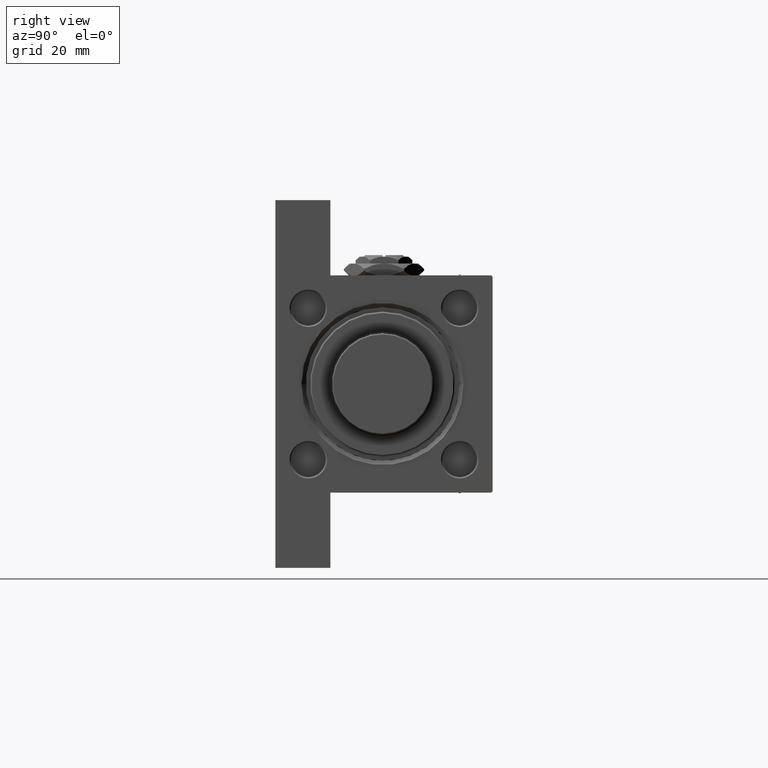
[diagram: clean part render]
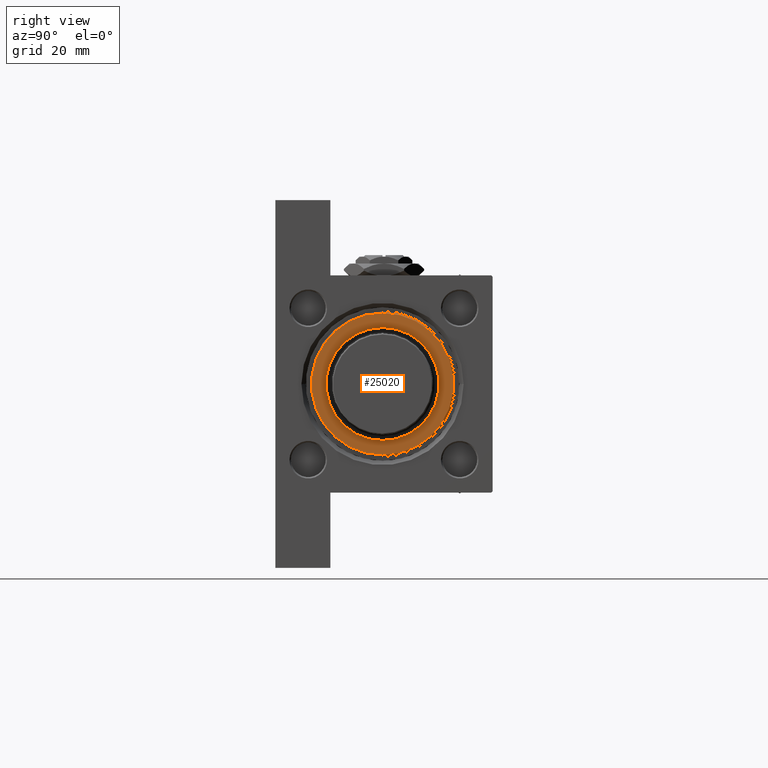
[diagram: same view with one face highlighted and labeled with its STEP entity id]
A machine part, right view. The second image highlights one B-rep face of the part: STEP entity #25020.
In plain terms, the highlighted planar face has unit normal (1, 0, 0).
Its self-contained STEP definition (entity closure, byte-faithful):
#227 = DIRECTION ( 'NONE',  ( 0.000000000000000000, 0.000000000000000000, 1.000000000000000000 ) ) ;
#558 = CARTESIAN_POINT ( 'NONE',  ( 0.000000000000000000, 0.000000000000000000, 37.69999999999999574 ) ) ;
#1672 = EDGE_CURVE ( 'NONE', #11558, #21341, #44841, .T. ) ;
#2458 = DIRECTION ( 'NONE',  ( 0.000000000000000000, 0.000000000000000000, 1.000000000000000000 ) ) ;
#3483 = PLANE ( 'NONE',  #22989 ) ;
#4192 = AXIS2_PLACEMENT_3D ( 'NONE', #558, #22770, #38752 ) ;
#7225 = FACE_BOUND ( 'NONE', #14312, .T. ) ;
#7231 = DIRECTION ( 'NONE',  ( 1.000000000000000000, 0.000000000000000000, 0.000000000000000000 ) ) ;
#9530 = DIRECTION ( 'NONE',  ( 1.000000000000000000, 0.000000000000000000, -0.000000000000000000 ) ) ;
#9962 = CARTESIAN_POINT ( 'NONE',  ( -19.50000000000000000, 2.388061258337338939E-15, 37.69999999999999574 ) ) ;
#11558 = VERTEX_POINT ( 'NONE', #32072 ) ;
#11889 = DIRECTION ( 'NONE',  ( 0.000000000000000000, 0.000000000000000000, 1.000000000000000000 ) ) ;
#12260 = EDGE_LOOP ( 'NONE', ( #39982, #17844 ) ) ;
#14298 = CIRCLE ( 'NONE', #42218, 19.50000000000000000 ) ;
#14312 = EDGE_LOOP ( 'NONE', ( #17511, #39499 ) ) ;
#17511 = ORIENTED_EDGE ( 'NONE', *, *, #24079, .F. ) ;
#17667 = DIRECTION ( 'NONE',  ( 1.000000000000000000, 0.000000000000000000, 0.000000000000000000 ) ) ;
#17844 = ORIENTED_EDGE ( 'NONE', *, *, #1672, .T. ) ;
#20055 = EDGE_CURVE ( 'NONE', #40375, #38221, #14298, .T. ) ;
#20383 = CIRCLE ( 'NONE', #41101, 19.50000000000000000 ) ;
#20908 = EDGE_CURVE ( 'NONE', #21341, #11558, #36523, .T. ) ;
#21341 = VERTEX_POINT ( 'NONE', #39293 ) ;
#22444 = FACE_OUTER_BOUND ( 'NONE', #12260, .T. ) ;
#22618 = CARTESIAN_POINT ( 'NONE',  ( 0.000000000000000000, 0.000000000000000000, 37.69999999999999574 ) ) ;
#22770 = DIRECTION ( 'NONE',  ( 0.000000000000000000, 0.000000000000000000, 1.000000000000000000 ) ) ;
#22989 = AXIS2_PLACEMENT_3D ( 'NONE', #33952, #49145, #9530 ) ;
#24079 = EDGE_CURVE ( 'NONE', #38221, #40375, #20383, .T. ) ;
#25020 = ADVANCED_FACE ( 'NONE', ( #7225, #22444 ), #3483, .T. ) ;
#26695 = CARTESIAN_POINT ( 'NONE',  ( 0.000000000000000000, 0.000000000000000000, 37.69999999999999574 ) ) ;
#32072 = CARTESIAN_POINT ( 'NONE',  ( 24.50000000000002487, 3.031000827889700833E-15, 37.69999999999999574 ) ) ;
#33952 = CARTESIAN_POINT ( 'NONE',  ( 0.000000000000000000, 0.000000000000000000, 37.69999999999999574 ) ) ;
#36523 = CIRCLE ( 'NONE', #42893, 24.50000000000002487 ) ;
#36678 = CARTESIAN_POINT ( 'NONE',  ( 0.000000000000000000, 0.000000000000000000, 37.69999999999999574 ) ) ;
#37862 = DIRECTION ( 'NONE',  ( 1.000000000000000000, 0.000000000000000000, 0.000000000000000000 ) ) ;
#38221 = VERTEX_POINT ( 'NONE', #47254 ) ;
#38752 = DIRECTION ( 'NONE',  ( 1.000000000000000000, 0.000000000000000000, 0.000000000000000000 ) ) ;
#39293 = CARTESIAN_POINT ( 'NONE',  ( -24.50000000000002487, 0.000000000000000000, 37.69999999999999574 ) ) ;
#39499 = ORIENTED_EDGE ( 'NONE', *, *, #20055, .F. ) ;
#39982 = ORIENTED_EDGE ( 'NONE', *, *, #20908, .T. ) ;
#40375 = VERTEX_POINT ( 'NONE', #9962 ) ;
#41101 = AXIS2_PLACEMENT_3D ( 'NONE', #36678, #2458, #17667 ) ;
#42218 = AXIS2_PLACEMENT_3D ( 'NONE', #22618, #11889, #37862 ) ;
#42893 = AXIS2_PLACEMENT_3D ( 'NONE', #26695, #227, #7231 ) ;
#44841 = CIRCLE ( 'NONE', #4192, 24.50000000000002487 ) ;
#47254 = CARTESIAN_POINT ( 'NONE',  ( 19.50000000000000000, 0.000000000000000000, 37.69999999999999574 ) ) ;
#49145 = DIRECTION ( 'NONE',  ( 0.000000000000000000, 0.000000000000000000, 1.000000000000000000 ) ) ;